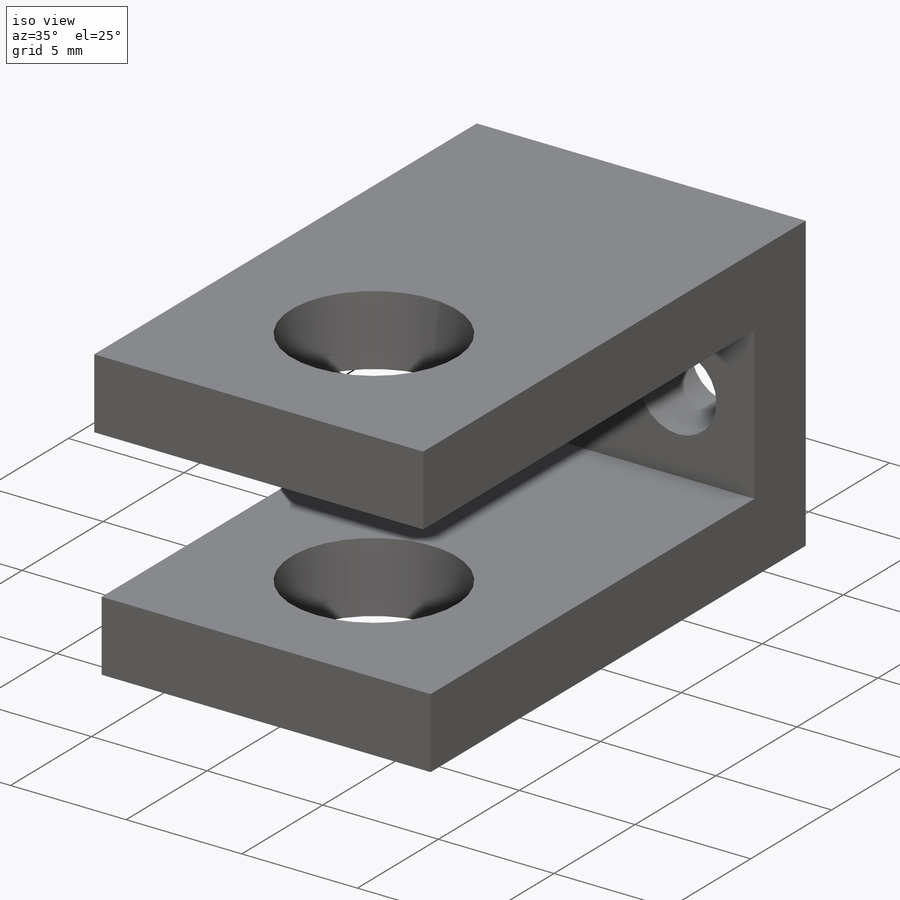
[diagram: iso view]
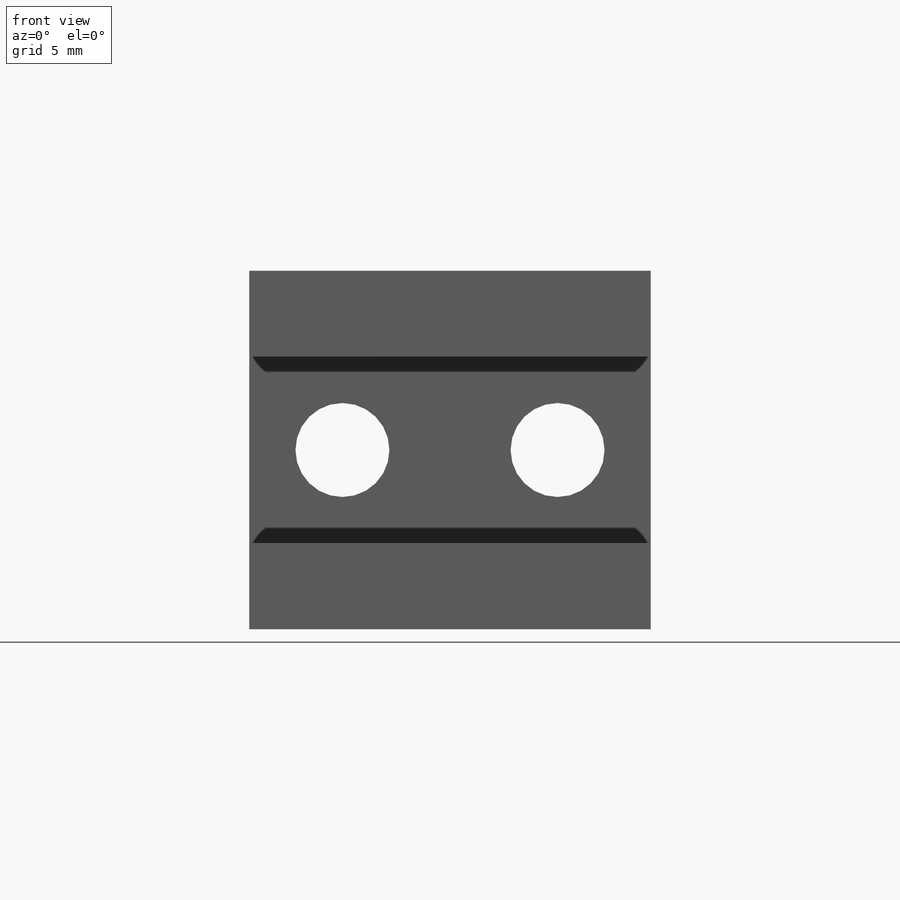
[diagram: front view]
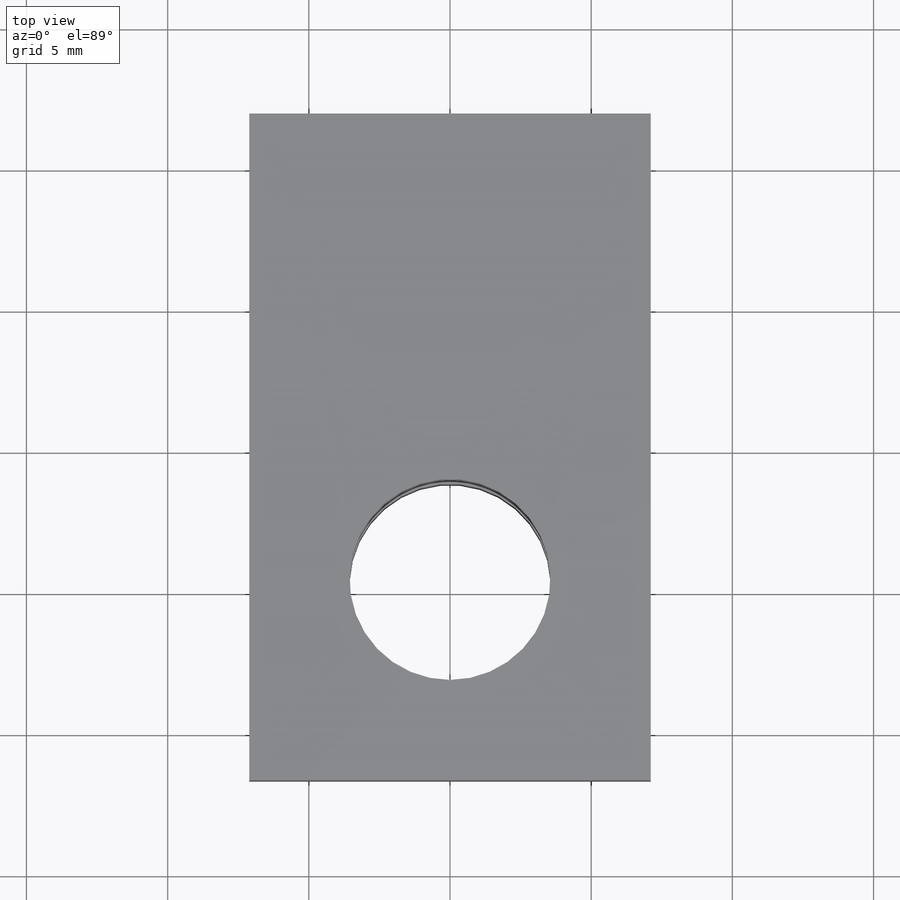
[diagram: top view]
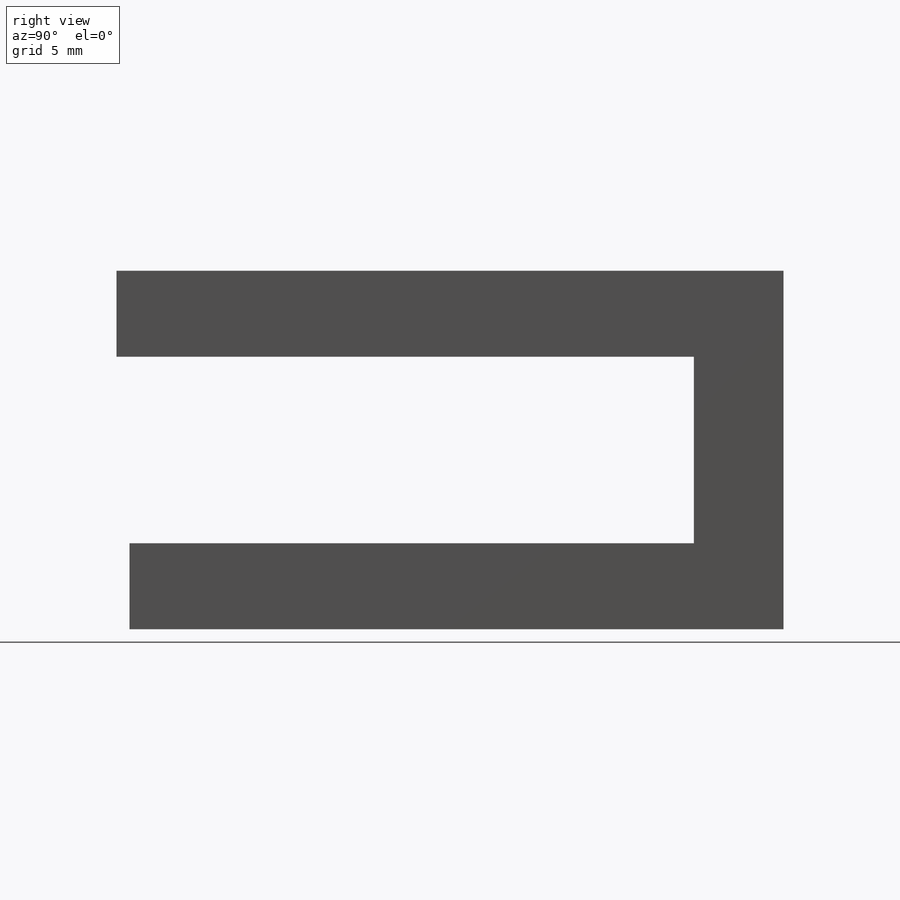
[diagram: right view]
SOLIDWORKS PART (.sldprt)
format: sldprt  version: not decoded by parser v0  size: 185,856 bytes
history: native  units: mm
features: sketch x5, extrude x3, cut_extrude x2, material x1 (+16 scaffold rows collapsed)
feature tree (27):
  scaffold x16  (default folders/planes/origin — collapsed)
  material  "Material <not specified>"
  sketch  "Sketch1"  dims[D1=14.224mm D2=23.622mm]
  extrude  "Boss-Extrude1"  Depth=3.048mm
  sketch  "Sketch2"  dims[D1=6.604mm D2=3.175mm D3=3.048mm]
  extrude  "middle"  Depth=14.224mm
  sketch  "Sketch3"
  extrude  "bottom"  Depth=3.048mm
  sketch  "Sketch4"  dims[D1=7.112mm D2=16.51mm D3=7.112mm]
  cut_extrude  "hole for clevis pin"  [1 undecoded]
  sketch  "Sketch5"  dims[c1.D1=3.3274mm c1.D2=3.556mm c1.D3=3.3274mm c2.D2=3.81mm c2.D3=3.302mm c2.D4=3.81mm c2.D5=3.302mm]
  cut_extrude  "holes for screws"  [1 undecoded]
decode coverage: 7 of 10 modeling features carry decoded parameters
note: 2 parameter values undecoded
note: suppression state not decoded; provenance and decode notes live in map.json
